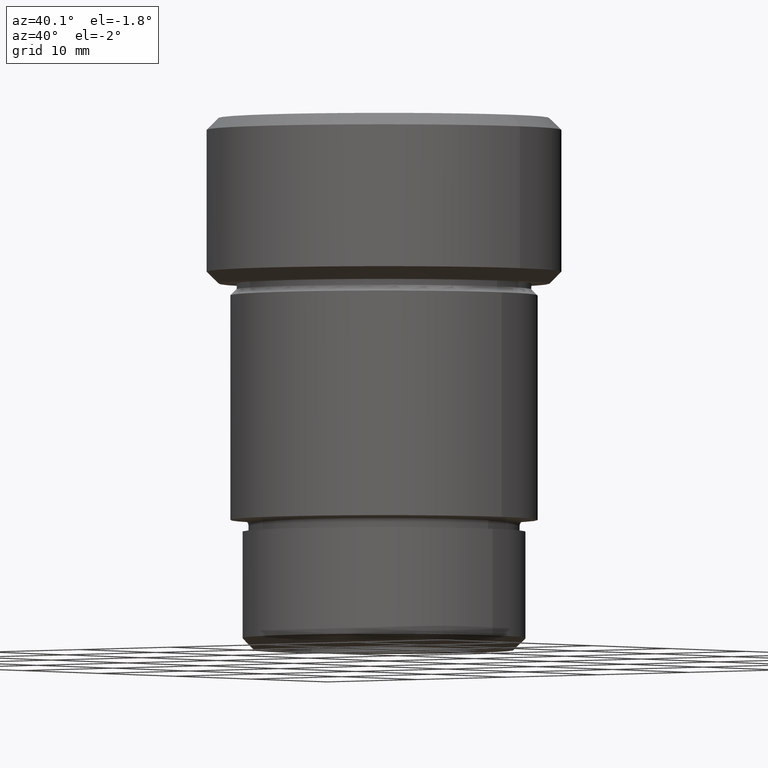
[diagram: clean part render]
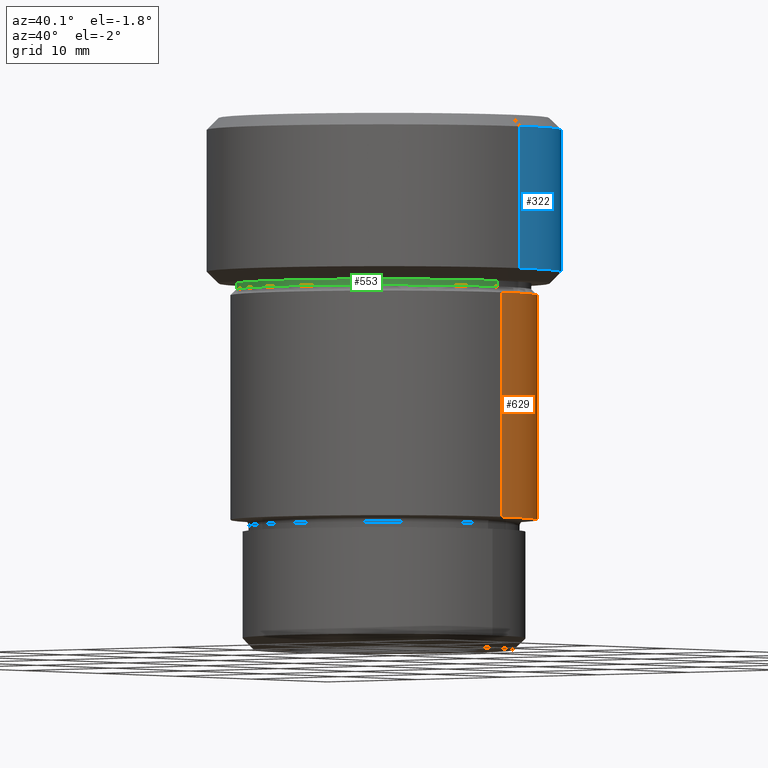
[diagram: same view with three faces highlighted in distinct colors, each labeled with its STEP entity id]
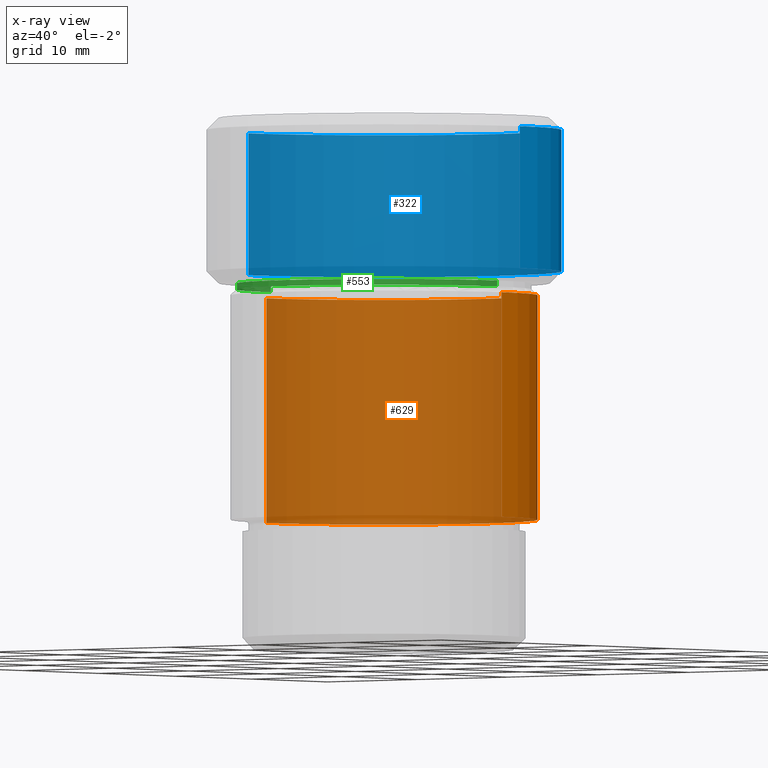
[diagram: x-ray of the same camera — body ghosted, the three highlighted faces saturated]
A machine part, auxiliary view with three faces highlighted in distinct colors.
The next image is the same camera in x-ray (body ghosted, the three faces saturated) — at least one of them is partly hidden behind the body in this view.
Their STEP definitions:

[orange] entity #629 — the highlighted cylindrical surface (partial cylindrical patch) has radius 13 mm, axis along (-0, -0, 1).
#2 = DIRECTION ( 'NONE',  ( -0.000000000000000000, -0.000000000000000000, 1.000000000000000000 ) ) ;
#11 = EDGE_CURVE ( 'NONE', #525, #555, #769, .T. ) ;
#13 = VECTOR ( 'NONE', #703, 1000.000000000000000 ) ;
#22 = CARTESIAN_POINT ( 'NONE',  ( 13.00000000000000178, 0.000000000000000000, 0.000000000000000000 ) ) ;
#39 = CARTESIAN_POINT ( 'NONE',  ( 0.000000000000000000, 0.000000000000000000, 0.000000000000000000 ) ) ;
#46 = AXIS2_PLACEMENT_3D ( 'NONE', #39, #467, #352 ) ;
#48 = DIRECTION ( 'NONE',  ( 1.000000000000000000, 0.000000000000000000, 0.000000000000000000 ) ) ;
#49 = CYLINDRICAL_SURFACE ( 'NONE', #46, 13.00000000000000178 ) ;
#83 = CARTESIAN_POINT ( 'NONE',  ( -13.00000000000000533, 1.592040838891559687E-15, -34.00000000000000000 ) ) ;
#122 = CIRCLE ( 'NONE', #632, 13.00000000000000178 ) ;
#135 = CIRCLE ( 'NONE', #579, 13.00000000000000355 ) ;
#146 = CARTESIAN_POINT ( 'NONE',  ( 13.00000000000000178, 0.000000000000000000, -15.00000000000000000 ) ) ;
#174 = EDGE_CURVE ( 'NONE', #524, #525, #135, .T. ) ;
#192 = ORIENTED_EDGE ( 'NONE', *, *, #11, .T. ) ;
#239 = CARTESIAN_POINT ( 'NONE',  ( 0.000000000000000000, 0.000000000000000000, -34.00000000000000000 ) ) ;
#280 = ORIENTED_EDGE ( 'NONE', *, *, #320, .F. ) ;
#284 = EDGE_CURVE ( 'NONE', #524, #317, #321, .T. ) ;
#286 = ORIENTED_EDGE ( 'NONE', *, *, #174, .T. ) ;
#317 = VERTEX_POINT ( 'NONE', #146 ) ;
#320 = EDGE_CURVE ( 'NONE', #317, #555, #122, .T. ) ;
#321 = LINE ( 'NONE', #22, #656 ) ;
#334 = CARTESIAN_POINT ( 'NONE',  ( -13.00000000000000178, 1.592040838891559293E-15, -15.00000000000000000 ) ) ;
#342 = FACE_OUTER_BOUND ( 'NONE', #747, .T. ) ;
#352 = DIRECTION ( 'NONE',  ( 1.000000000000000000, 0.000000000000000000, 0.000000000000000000 ) ) ;
#372 = DIRECTION ( 'NONE',  ( 1.000000000000000000, 0.000000000000000000, 0.000000000000000000 ) ) ;
#443 = CARTESIAN_POINT ( 'NONE',  ( 13.00000000000000355, 0.000000000000000000, -34.00000000000000000 ) ) ;
#467 = DIRECTION ( 'NONE',  ( -0.000000000000000000, -0.000000000000000000, 1.000000000000000000 ) ) ;
#511 = DIRECTION ( 'NONE',  ( -0.000000000000000000, -0.000000000000000000, 1.000000000000000000 ) ) ;
#513 = ORIENTED_EDGE ( 'NONE', *, *, #284, .F. ) ;
#524 = VERTEX_POINT ( 'NONE', #443 ) ;
#525 = VERTEX_POINT ( 'NONE', #83 ) ;
#543 = DIRECTION ( 'NONE',  ( -0.000000000000000000, -0.000000000000000000, 1.000000000000000000 ) ) ;
#555 = VERTEX_POINT ( 'NONE', #334 ) ;
#579 = AXIS2_PLACEMENT_3D ( 'NONE', #239, #2, #48 ) ;
#629 = ADVANCED_FACE ( 'NONE', ( #342 ), #49, .T. ) ;
#632 = AXIS2_PLACEMENT_3D ( 'NONE', #730, #543, #372 ) ;
#656 = VECTOR ( 'NONE', #511, 1000.000000000000000 ) ;
#698 = CARTESIAN_POINT ( 'NONE',  ( -13.00000000000000178, 1.592040838891559293E-15, 0.000000000000000000 ) ) ;
#703 = DIRECTION ( 'NONE',  ( -0.000000000000000000, -0.000000000000000000, 1.000000000000000000 ) ) ;
#730 = CARTESIAN_POINT ( 'NONE',  ( 0.000000000000000000, 0.000000000000000000, -15.00000000000000000 ) ) ;
#747 = EDGE_LOOP ( 'NONE', ( #286, #192, #280, #513 ) ) ;
#769 = LINE ( 'NONE', #698, #13 ) ;

[blue] entity #322 — the highlighted cylindrical surface (partial cylindrical patch) has radius 15 mm, axis along (-0, -0, 1).
#20 = EDGE_CURVE ( 'NONE', #369, #198, #117, .T. ) ;
#74 = CARTESIAN_POINT ( 'NONE',  ( 0.000000000000000000, 0.000000000000000000, -1.000000000000004441 ) ) ;
#93 = ORIENTED_EDGE ( 'NONE', *, *, #788, .T. ) ;
#117 = LINE ( 'NONE', #365, #191 ) ;
#118 = CARTESIAN_POINT ( 'NONE',  ( 0.000000000000000000, 0.000000000000000000, -13.00000000000001066 ) ) ;
#123 = CARTESIAN_POINT ( 'NONE',  ( 14.99999999999999822, 0.000000000000000000, -13.00000000000001066 ) ) ;
#134 = EDGE_CURVE ( 'NONE', #432, #198, #350, .T. ) ;
#144 = CARTESIAN_POINT ( 'NONE',  ( -14.99999999999999822, 1.836970198721029589E-15, 0.000000000000000000 ) ) ;
#170 = DIRECTION ( 'NONE',  ( -0.000000000000000000, -0.000000000000000000, 1.000000000000000000 ) ) ;
#191 = VECTOR ( 'NONE', #727, 1000.000000000000000 ) ;
#198 = VERTEX_POINT ( 'NONE', #488 ) ;
#202 = ORIENTED_EDGE ( 'NONE', *, *, #20, .F. ) ;
#217 = AXIS2_PLACEMENT_3D ( 'NONE', #655, #170, #719 ) ;
#234 = CARTESIAN_POINT ( 'NONE',  ( -14.99999999999999822, 1.836970198721029589E-15, -1.000000000000004441 ) ) ;
#244 = FACE_OUTER_BOUND ( 'NONE', #583, .T. ) ;
#322 = ADVANCED_FACE ( 'NONE', ( #244 ), #614, .T. ) ;
#327 = CIRCLE ( 'NONE', #370, 14.99999999999999822 ) ;
#350 = CIRCLE ( 'NONE', #761, 14.99999999999999822 ) ;
#365 = CARTESIAN_POINT ( 'NONE',  ( 14.99999999999999822, 0.000000000000000000, 0.000000000000000000 ) ) ;
#369 = VERTEX_POINT ( 'NONE', #123 ) ;
#370 = AXIS2_PLACEMENT_3D ( 'NONE', #118, #789, #611 ) ;
#382 = DIRECTION ( 'NONE',  ( 0.000000000000000000, 0.000000000000000000, -1.000000000000000000 ) ) ;
#426 = ORIENTED_EDGE ( 'NONE', *, *, #134, .T. ) ;
#432 = VERTEX_POINT ( 'NONE', #234 ) ;
#481 = ORIENTED_EDGE ( 'NONE', *, *, #527, .T. ) ;
#488 = CARTESIAN_POINT ( 'NONE',  ( 14.99999999999999822, 0.000000000000000000, -1.000000000000004441 ) ) ;
#527 = EDGE_CURVE ( 'NONE', #605, #432, #763, .T. ) ;
#583 = EDGE_LOOP ( 'NONE', ( #93, #481, #426, #202 ) ) ;
#605 = VERTEX_POINT ( 'NONE', #717 ) ;
#611 = DIRECTION ( 'NONE',  ( -1.000000000000000000, 0.000000000000000000, 0.000000000000000000 ) ) ;
#614 = CYLINDRICAL_SURFACE ( 'NONE', #217, 14.99999999999999822 ) ;
#638 = DIRECTION ( 'NONE',  ( -0.000000000000000000, -0.000000000000000000, 1.000000000000000000 ) ) ;
#655 = CARTESIAN_POINT ( 'NONE',  ( 0.000000000000000000, 0.000000000000000000, 0.000000000000000000 ) ) ;
#709 = DIRECTION ( 'NONE',  ( 1.000000000000000000, 0.000000000000000000, 0.000000000000000000 ) ) ;
#717 = CARTESIAN_POINT ( 'NONE',  ( -14.99999999999999822, 1.836970198721029589E-15, -13.00000000000001066 ) ) ;
#719 = DIRECTION ( 'NONE',  ( 1.000000000000000000, 0.000000000000000000, 0.000000000000000000 ) ) ;
#727 = DIRECTION ( 'NONE',  ( -0.000000000000000000, -0.000000000000000000, 1.000000000000000000 ) ) ;
#750 = VECTOR ( 'NONE', #638, 1000.000000000000000 ) ;
#761 = AXIS2_PLACEMENT_3D ( 'NONE', #74, #382, #709 ) ;
#763 = LINE ( 'NONE', #144, #750 ) ;
#788 = EDGE_CURVE ( 'NONE', #369, #605, #327, .T. ) ;
#789 = DIRECTION ( 'NONE',  ( -0.000000000000000000, -0.000000000000000000, 1.000000000000000000 ) ) ;

[green] entity #553 — the highlighted cylindrical surface (partial cylindrical patch) has radius 12.5 mm, axis along (-0, -0, 1).
#28 = CARTESIAN_POINT ( 'NONE',  ( 12.50000000000000000, 0.000000000000000000, 0.000000000000000000 ) ) ;
#54 = CARTESIAN_POINT ( 'NONE',  ( 0.000000000000000000, 0.000000000000000000, -14.00000000000000000 ) ) ;
#137 = CIRCLE ( 'NONE', #242, 12.50000000000000000 ) ;
#140 = VERTEX_POINT ( 'NONE', #582 ) ;
#212 = VERTEX_POINT ( 'NONE', #266 ) ;
#242 = AXIS2_PLACEMENT_3D ( 'NONE', #360, #711, #602 ) ;
#266 = CARTESIAN_POINT ( 'NONE',  ( 12.50000000000000000, 0.000000000000000000, -14.49999999999999822 ) ) ;
#275 = DIRECTION ( 'NONE',  ( -0.000000000000000000, -0.000000000000000000, 1.000000000000000000 ) ) ;
#276 = CARTESIAN_POINT ( 'NONE',  ( 0.000000000000000000, 0.000000000000000000, 0.000000000000000000 ) ) ;
#278 = VECTOR ( 'NONE', #275, 1000.000000000000000 ) ;
#288 = EDGE_LOOP ( 'NONE', ( #473, #371, #692, #573 ) ) ;
#310 = EDGE_CURVE ( 'NONE', #621, #140, #646, .T. ) ;
#319 = AXIS2_PLACEMENT_3D ( 'NONE', #54, #367, #723 ) ;
#345 = CARTESIAN_POINT ( 'NONE',  ( -12.50000000000000000, 1.530808498934191521E-15, 0.000000000000000000 ) ) ;
#360 = CARTESIAN_POINT ( 'NONE',  ( 0.000000000000000000, 0.000000000000000000, -14.49999999999999822 ) ) ;
#367 = DIRECTION ( 'NONE',  ( -0.000000000000000000, -0.000000000000000000, 1.000000000000000000 ) ) ;
#371 = ORIENTED_EDGE ( 'NONE', *, *, #417, .T. ) ;
#376 = CYLINDRICAL_SURFACE ( 'NONE', #778, 12.50000000000000000 ) ;
#408 = VECTOR ( 'NONE', #445, 1000.000000000000000 ) ;
#417 = EDGE_CURVE ( 'NONE', #621, #212, #137, .T. ) ;
#445 = DIRECTION ( 'NONE',  ( -0.000000000000000000, -0.000000000000000000, 1.000000000000000000 ) ) ;
#451 = EDGE_CURVE ( 'NONE', #212, #536, #686, .T. ) ;
#473 = ORIENTED_EDGE ( 'NONE', *, *, #310, .F. ) ;
#510 = CIRCLE ( 'NONE', #319, 12.50000000000000000 ) ;
#536 = VERTEX_POINT ( 'NONE', #571 ) ;
#553 = ADVANCED_FACE ( 'NONE', ( #671 ), #376, .T. ) ;
#571 = CARTESIAN_POINT ( 'NONE',  ( 12.50000000000000000, 0.000000000000000000, -14.00000000000000000 ) ) ;
#573 = ORIENTED_EDGE ( 'NONE', *, *, #768, .F. ) ;
#582 = CARTESIAN_POINT ( 'NONE',  ( -12.50000000000000000, 1.530808498934191521E-15, -14.00000000000000000 ) ) ;
#602 = DIRECTION ( 'NONE',  ( 1.000000000000000000, 0.000000000000000000, 0.000000000000000000 ) ) ;
#621 = VERTEX_POINT ( 'NONE', #710 ) ;
#646 = LINE ( 'NONE', #345, #408 ) ;
#671 = FACE_OUTER_BOUND ( 'NONE', #288, .T. ) ;
#686 = LINE ( 'NONE', #28, #278 ) ;
#692 = ORIENTED_EDGE ( 'NONE', *, *, #451, .T. ) ;
#697 = DIRECTION ( 'NONE',  ( 1.000000000000000000, 0.000000000000000000, 0.000000000000000000 ) ) ;
#710 = CARTESIAN_POINT ( 'NONE',  ( -12.50000000000000000, 1.530808498934191521E-15, -14.49999999999999822 ) ) ;
#711 = DIRECTION ( 'NONE',  ( -0.000000000000000000, -0.000000000000000000, 1.000000000000000000 ) ) ;
#723 = DIRECTION ( 'NONE',  ( 1.000000000000000000, 0.000000000000000000, 0.000000000000000000 ) ) ;
#740 = DIRECTION ( 'NONE',  ( -0.000000000000000000, -0.000000000000000000, 1.000000000000000000 ) ) ;
#768 = EDGE_CURVE ( 'NONE', #140, #536, #510, .T. ) ;
#778 = AXIS2_PLACEMENT_3D ( 'NONE', #276, #740, #697 ) ;